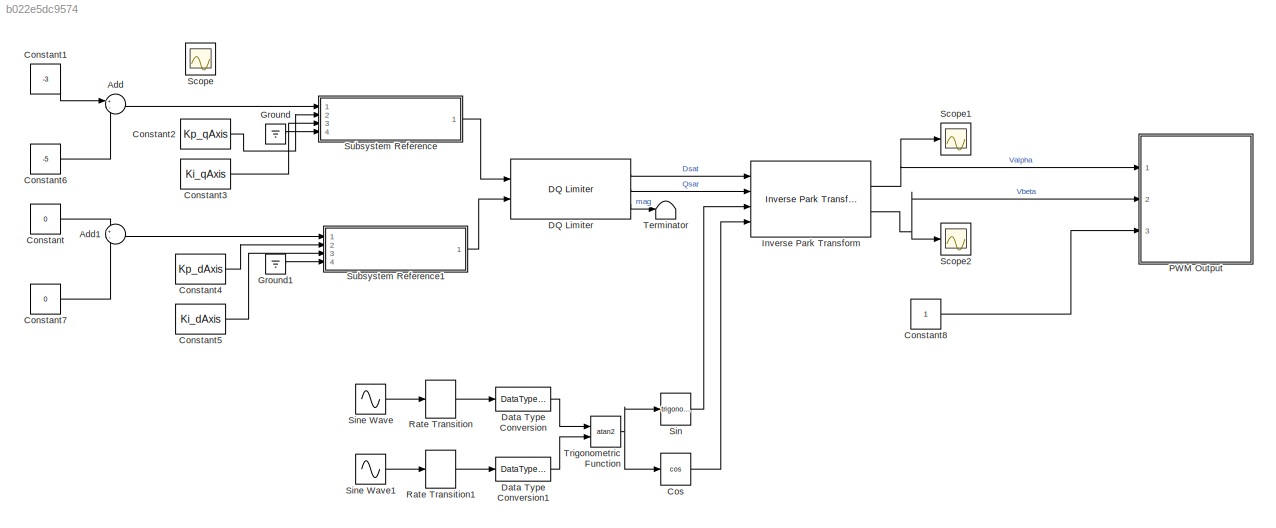
MODEL slx_b022e5dc9574
KIND model
CONFIG AbsTol = auto
CONFIG EnableMultiTasking = off
CONFIG FixedStep = 2e-4
CONFIG MaxStep = auto
CONFIG MinStep = auto
CONFIG RelTol = 1e-3
CONFIG SampleTimeConstraint = Unconstrained
CONFIG SolverName = FixedStepDiscrete
CONFIG StartTime = 0.0
CONFIG StopTime = 10.0
BLOCK [Sum] Add
  Inputs = +-
  Ports = [2, 1]
BLOCK [Sum] Add1
  Inputs = +-
  Ports = [2, 1]
BLOCK [Constant] Constant
  OutDataTypeStr = single
  Value = 0
BLOCK [Constant] Constant1
  OutDataTypeStr = single
  Value = -3
BLOCK [Constant] Constant2
  OutDataTypeStr = single
  Value = Kp_qAxis
BLOCK [Constant] Constant3
  OutDataTypeStr = single
  Value = Ki_qAxis
BLOCK [Constant] Constant4
  OutDataTypeStr = single
  Value = Kp_dAxis
BLOCK [Constant] Constant5
  OutDataTypeStr = single
  Value = Ki_dAxis
BLOCK [Constant] Constant6
  OutDataTypeStr = single
  Value = -5
BLOCK [Constant] Constant7
  OutDataTypeStr = single
  Value = 0
BLOCK [Constant] Constant8
BLOCK [Trigonometry] Cos
  Operator = cos
  Ports = [1, 1]
BLOCK [Reference] DQ Limiter  REF=mcbcontrolslib/DQ Limiter
  Ports = [2, 3]
  SourceBlock = mcbcontrolslib/DQ Limiter
  SourceProductBaseCode = MT
  SourceType = DQ Limiter
BLOCK [DataTypeConversion] Data Type Conversion
  OutDataTypeStr = single
  RndMeth = Floor
  SaturateOnIntegerOverflow = off
BLOCK [DataTypeConversion] Data Type Conversion1
  OutDataTypeStr = single
  RndMeth = Floor
  SaturateOnIntegerOverflow = off
BLOCK [Ground] Ground
BLOCK [Ground] Ground1
BLOCK [Reference] Inverse Park Transform  REF=mcbcontrolslib/Inverse Park Transform
  Ports = [4, 2]
  SourceBlock = mcbcontrolslib/Inverse Park Transform
  SourceProductBaseCode = MT
  SourceType = Inverse Park Transform
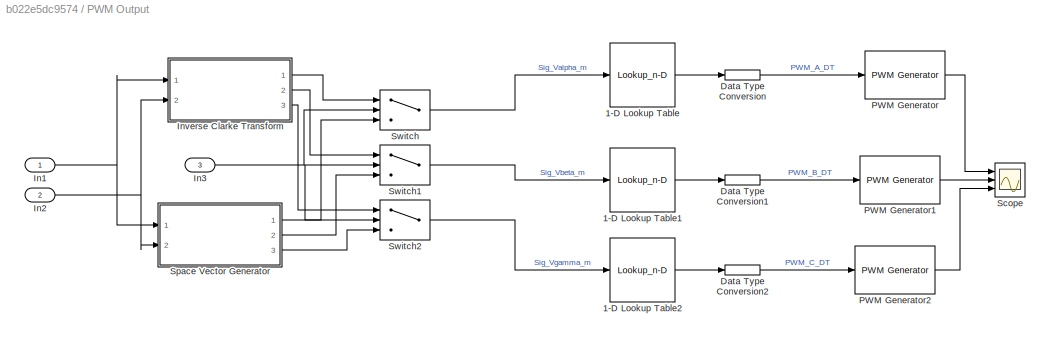
BLOCK [SubSystem] PWM Output
  Ports = [3]
  RequestExecContextInheritance = off
BLOCK [Lookup_n-D] PWM Output/1-D Lookup Table
  BreakpointsForDimension1 = BrkPoints
  ExtrapMethod = Clip
  InputPortMap = u0
  InternalRulePriority = Speed
  NumberOfTableDimensions = 1
  OutDataTypeStr = uint16
  Ports = [1, 1]
  RndMeth = Simplest
  SaturateOnIntegerOverflow = on
  Table = pwmTableData
BLOCK [Lookup_n-D] PWM Output/1-D Lookup Table1
  BreakpointsForDimension1 = BrkPoints
  ExtrapMethod = Clip
  InputPortMap = u0
  InternalRulePriority = Speed
  NumberOfTableDimensions = 1
  OutDataTypeStr = uint16
  Ports = [1, 1]
  RndMeth = Simplest
  SaturateOnIntegerOverflow = on
  Table = pwmTableData
BLOCK [Lookup_n-D] PWM Output/1-D Lookup Table2
  BreakpointsForDimension1 = BrkPoints
  ExtrapMethod = Clip
  InputPortMap = u0
  InternalRulePriority = Speed
  NumberOfTableDimensions = 1
  OutDataTypeStr = uint16
  Ports = [1, 1]
  RndMeth = Simplest
  SaturateOnIntegerOverflow = on
  Table = pwmTableData
BLOCK [DataTypeConversion] PWM Output/Data Type Conversion
  RndMeth = Floor
  SaturateOnIntegerOverflow = off
BLOCK [DataTypeConversion] PWM Output/Data Type Conversion1
  RndMeth = Floor
  SaturateOnIntegerOverflow = off
BLOCK [DataTypeConversion] PWM Output/Data Type Conversion2
  RndMeth = Floor
  SaturateOnIntegerOverflow = off
BLOCK [Inport] PWM Output/In1
BLOCK [Inport] PWM Output/In2
  Port = 2
BLOCK [Inport] PWM Output/In3
  Port = 3
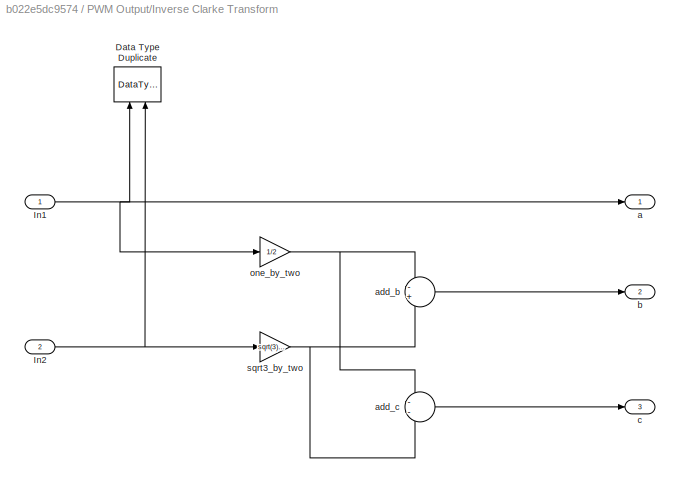
BLOCK [SubSystem] PWM Output/Inverse Clarke Transform
  Ports = [2, 3]
  RequestExecContextInheritance = off
  TreatAsAtomicUnit = on
BLOCK [DataTypeDuplicate] PWM Output/Inverse Clarke Transform/Data Type Duplicate
  NameLocation = right
  Ports = [2]
BLOCK [Inport] PWM Output/Inverse Clarke Transform/In1
BLOCK [Inport] PWM Output/Inverse Clarke Transform/In2
  Port = 2
BLOCK [Outport] PWM Output/Inverse Clarke Transform/a
  VectorParamsAs1DForOutWhenUnconnected = off
BLOCK [Sum] PWM Output/Inverse Clarke Transform/add_b
  AccumDataTypeStr = Inherit: Same as first input
  Inputs = -+
  OutDataTypeStr = Inherit: Same as first input
  Ports = [2, 1]
  RndMeth = Simplest
BLOCK [Sum] PWM Output/Inverse Clarke Transform/add_c
  AccumDataTypeStr = Inherit: Same as first input
  Inputs = --
  OutDataTypeStr = Inherit: Same as first input
  Ports = [2, 1]
  RndMeth = Simplest
BLOCK [Outport] PWM Output/Inverse Clarke Transform/b
  Port = 2
  VectorParamsAs1DForOutWhenUnconnected = off
BLOCK [Outport] PWM Output/Inverse Clarke Transform/c
  Port = 3
  VectorParamsAs1DForOutWhenUnconnected = off
BLOCK [Gain] PWM Output/Inverse Clarke Transform/one_by_two
  Gain = 1/2
  NameLocation = top
  OutDataTypeStr = Inherit: Same as input
  RndMeth = Simplest
BLOCK [Gain] PWM Output/Inverse Clarke Transform/sqrt3_by_two
  Gain = sqrt(3)/2
  OutDataTypeStr = Inherit: Same as input
  RndMeth = Simplest
BLOCK [Reference] PWM Output/PWM Generator  REF=eePwmGenerator/PWM Generator
  Commented = on
  Ports = [1, 1]
  SourceBlock = eePwmGenerator/PWM Generator
  SourceProductBaseCode = PS
  SourceType = PWM Generator
BLOCK [Reference] PWM Output/PWM Generator1  REF=eePwmGenerator/PWM Generator
  Commented = on
  Ports = [1, 1]
  SourceBlock = eePwmGenerator/PWM Generator
  SourceProductBaseCode = PS
  SourceType = PWM Generator
BLOCK [Reference] PWM Output/PWM Generator2  REF=eePwmGenerator/PWM Generator
  Commented = on
  Ports = [1, 1]
  SourceBlock = eePwmGenerator/PWM Generator
  SourceProductBaseCode = PS
  SourceType = PWM Generator
BLOCK [Scope] PWM Output/Scope
  Commented = on
  Floating = off
  NumInputPorts = 3
  Ports = [3]
  ScopeSpecificationString = Simulink.scopes.TimeScopeBlockCfg('CurrentConfiguration', extmgr.ConfigurationSet(extmgr.Configuration('Core','General UI',true),extmgr.Configuration('Core','Source UI',true),extmgr.Configuration('Sources','WiredSimulink',true,'DataLoggingVariableName','ScopeData1'),extmgr.Configuration('Visuals','Time Domain',true,'SerializedDisplays',{struct('MinYLimReal','-0.125','MaxYLimReal','1.125','YLabelRe...<+1494ch>
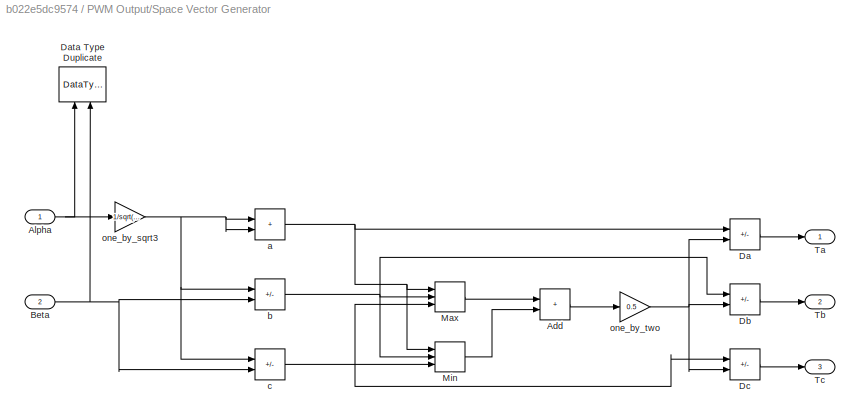
BLOCK [SubSystem] PWM Output/Space Vector Generator
  Ports = [2, 3]
  RequestExecContextInheritance = off
  TreatAsAtomicUnit = on
BLOCK [Sum] PWM Output/Space Vector Generator/Add
  AccumDataTypeStr = Inherit: Same as first input
  IconShape = rectangular
  OutDataTypeStr = Inherit: Same as first input
  Ports = [2, 1]
  RndMeth = Simplest
BLOCK [Inport] PWM Output/Space Vector Generator/Alpha
BLOCK [Inport] PWM Output/Space Vector Generator/Beta
  Port = 2
BLOCK [Sum] PWM Output/Space Vector Generator/Da
  AccumDataTypeStr = Inherit: Same as first input
  IconShape = rectangular
  Inputs = +-
  OutDataTypeStr = Inherit: Same as first input
  Ports = [2, 1]
  RndMeth = Simplest
BLOCK [DataTypeDuplicate] PWM Output/Space Vector Generator/Data Type Duplicate
  NameLocation = right
  Ports = [2]
BLOCK [Sum] PWM Output/Space Vector Generator/Db
  AccumDataTypeStr = Inherit: Same as first input
  IconShape = rectangular
  Inputs = +-
  OutDataTypeStr = Inherit: Same as first input
  Ports = [2, 1]
  RndMeth = Simplest
BLOCK [Sum] PWM Output/Space Vector Generator/Dc
  AccumDataTypeStr = Inherit: Same as first input
  IconShape = rectangular
  Inputs = +-
  OutDataTypeStr = Inherit: Same as first input
  Ports = [2, 1]
  RndMeth = Simplest
BLOCK [MinMax] PWM Output/Space Vector Generator/Max
  Function = max
  Inputs = 3
  Ports = [3, 1]
  RndMeth = Simplest
BLOCK [MinMax] PWM Output/Space Vector Generator/Min
  Inputs = 3
  Ports = [3, 1]
  RndMeth = Simplest
BLOCK [Outport] PWM Output/Space Vector Generator/Ta
  VectorParamsAs1DForOutWhenUnconnected = off
BLOCK [Outport] PWM Output/Space Vector Generator/Tb
  Port = 2
  VectorParamsAs1DForOutWhenUnconnected = off
BLOCK [Outport] PWM Output/Space Vector Generator/Tc
  Port = 3
  VectorParamsAs1DForOutWhenUnconnected = off
BLOCK [Sum] PWM Output/Space Vector Generator/a
  AccumDataTypeStr = Inherit: Same as first input
  IconShape = rectangular
  NameLocation = top
  OutDataTypeStr = Inherit: Same as first input
  Ports = [2, 1]
  RndMeth = Simplest
BLOCK [Sum] PWM Output/Space Vector Generator/b
  AccumDataTypeStr = Inherit: Same as first input
  IconShape = rectangular
  Inputs = -+
  NameLocation = top
  OutDataTypeStr = Inherit: Same as first input
  Ports = [2, 1]
  RndMeth = Simplest
BLOCK [Sum] PWM Output/Space Vector Generator/c
  AccumDataTypeStr = Inherit: Same as first input
  IconShape = rectangular
  Inputs = --
  NameLocation = top
  OutDataTypeStr = Inherit: Same as first input
  Ports = [2, 1]
  RndMeth = Simplest
BLOCK [Gain] PWM Output/Space Vector Generator/one_by_sqrt3
  Gain = 1/sqrt(3)
  NameLocation = top
  OutDataTypeStr = Inherit: Same as input
  ParamDataTypeStr = Inherit: Same as input
  RndMeth = Simplest
BLOCK [Gain] PWM Output/Space Vector Generator/one_by_two
  Gain = 0.5
  NameLocation = top
  OutDataTypeStr = Inherit: Same as input
  ParamDataTypeStr = Inherit: Same as input
  RndMeth = Simplest
BLOCK [Switch] PWM Output/Switch
  Criteria = u2 > Threshold
  InputSameDT = off
  SaturateOnIntegerOverflow = off
BLOCK [Switch] PWM Output/Switch1
  Criteria = u2 > Threshold
  InputSameDT = off
  SaturateOnIntegerOverflow = off
BLOCK [Switch] PWM Output/Switch2
  Criteria = u2 > Threshold
  InputSameDT = off
  SaturateOnIntegerOverflow = off
BLOCK [RateTransition] Rate Transition
BLOCK [RateTransition] Rate Transition1
BLOCK [Scope] Scope
  Floating = off
  IOType = viewer
  NumInputPorts = 1
  Ports = []
  ScopeSpecificationString = Simulink.scopes.TimeScopeBlockCfg('CurrentConfiguration', extmgr.ConfigurationSet(extmgr.Configuration('Core','General UI',true),extmgr.Configuration('Core','Source UI',true),extmgr.Configuration('Sources','WiredSimulink',true),extmgr.Configuration('Visuals','Time Domain',true,'SerializedDisplays',{struct('MinYLimReal','-0.75','MaxYLimReal','6.75','YLabelReal','','MinYLimMag','0.00000','MaxYLimMag...<+3465ch>
BLOCK [Scope] Scope1
  Floating = off
  NumInputPorts = 1
  Ports = [1]
  ScopeSpecificationString = Simulink.scopes.TimeScopeBlockCfg('CurrentConfiguration', extmgr.ConfigurationSet(extmgr.Configuration('Core','General UI',true),extmgr.Configuration('Core','Source UI',true),extmgr.Configuration('Sources','WiredSimulink',true,'DataLoggingVariableName','ScopeData1'),extmgr.Configuration('Visuals','Time Domain',true,'SerializedDisplays',{struct('MinYLimReal','-7.5','MaxYLimReal','7.5','YLabelReal',...<+1371ch>
BLOCK [Scope] Scope2
  Floating = off
  NumInputPorts = 1
  Ports = [1]
  ScopeSpecificationString = Simulink.scopes.TimeScopeBlockCfg('CurrentConfiguration', extmgr.ConfigurationSet(extmgr.Configuration('Core','General UI',true),extmgr.Configuration('Core','Source UI',true),extmgr.Configuration('Sources','WiredSimulink',true,'DataLoggingVariableName','ScopeData2'),extmgr.Configuration('Visuals','Time Domain',true),extmgr.Configuration('Tools','Plot Navigation',true),extmgr.Configuration('Tools',...<+40ch>
BLOCK [Trigonometry] Sin
  Ports = [1, 1]
BLOCK [Sin] Sine Wave
  Amplitude = 3
  Frequency = 60
  Ports = [0, 1]
  SampleTime = 0
BLOCK [Sin] Sine Wave1
  Amplitude = 3
  Frequency = 60
  Phase = pi/2
  Ports = [0, 1]
  SampleTime = 0
BLOCK [SubSystem] Subsystem Reference
  Ports = [4, 1]
  ReferencedSubsystem = PID_custom
  RequestExecContextInheritance = off
BLOCK [SubSystem] Subsystem Reference1
  Ports = [4, 1]
  ReferencedSubsystem = PID_custom
  RequestExecContextInheritance = off
BLOCK [Terminator] Terminator
BLOCK [Trigonometry] Trigonometric Function
  Operator = atan2
  Ports = [2, 1]
LINE Add1:1 -> Subsystem Reference1:1
LINE Add:1 -> Subsystem Reference:1
LINE Constant1:1 -> Add:1
LINE Constant2:1 -> Subsystem Reference:2
LINE Constant3:1 -> Subsystem Reference:3
LINE Constant4:1 -> Subsystem Reference1:2
LINE Constant5:1 -> Subsystem Reference1:3
LINE Constant6:1 -> Add:2
LINE Constant7:1 -> Add1:2
LINE Constant8:1 -> PWM Output:3
LINE Constant:1 -> Add1:1
LINE Cos:1 -> Inverse Park Transform:4
LINE DQ Limiter:1 -> Inverse Park Transform:1
LINE DQ Limiter:2 -> Inverse Park Transform:2
LINE DQ Limiter:3 -> Terminator:1
LINE Data Type Conversion1:1 -> Trigonometric Function:2
LINE Data Type Conversion:1 -> Trigonometric Function:1
LINE Ground1:1 -> Subsystem Reference1:4
LINE Ground:1 -> Subsystem Reference:4
NET Inverse Park Transform:1 -> PWM Output:1, Scope1:1
NET Inverse Park Transform:2 -> PWM Output:2, Scope2:1
LINE PWM Output/1-D Lookup Table1:1 -> PWM Output/Data Type Conversion1:1
LINE PWM Output/1-D Lookup Table2:1 -> PWM Output/Data Type Conversion2:1
LINE PWM Output/1-D Lookup Table:1 -> PWM Output/Data Type Conversion:1
LINE PWM Output/Data Type Conversion1:1 -> PWM Output/PWM Generator1:1
LINE PWM Output/Data Type Conversion2:1 -> PWM Output/PWM Generator2:1
LINE PWM Output/Data Type Conversion:1 -> PWM Output/PWM Generator:1
NET PWM Output/In1:1 -> PWM Output/Inverse Clarke Transform:1, PWM Output/Space Vector Generator:1
NET PWM Output/In2:1 -> PWM Output/Inverse Clarke Transform:2, PWM Output/Space Vector Generator:2
NET PWM Output/In3:1 -> PWM Output/Switch1:2, PWM Output/Switch2:2, PWM Output/Switch:2
LINE PWM Output/Inverse Clarke Transform:1 -> PWM Output/Switch:1
LINE PWM Output/Inverse Clarke Transform:2 -> PWM Output/Switch1:1
LINE PWM Output/Inverse Clarke Transform:3 -> PWM Output/Switch2:1
LINE PWM Output/PWM Generator1:1 -> PWM Output/Scope:2
LINE PWM Output/PWM Generator2:1 -> PWM Output/Scope:3
LINE PWM Output/PWM Generator:1 -> PWM Output/Scope:1
LINE PWM Output/Space Vector Generator/Add:1 -> PWM Output/Space Vector Generator/one_by_two:1
NET PWM Output/Space Vector Generator/Alpha:1 -> PWM Output/Space Vector Generator/Data Type Duplicate:1, PWM Output/Space Vector Generator/one_by_sqrt3:1
NET PWM Output/Space Vector Generator/Beta:1 -> PWM Output/Space Vector Generator/Data Type Duplicate:2, PWM Output/Space Vector Generator/b:2, PWM Output/Space Vector Generator/c:2
LINE PWM Output/Space Vector Generator/Da:1 -> PWM Output/Space Vector Generator/Ta:1
LINE PWM Output/Space Vector Generator/Db:1 -> PWM Output/Space Vector Generator/Tb:1
LINE PWM Output/Space Vector Generator/Dc:1 -> PWM Output/Space Vector Generator/Tc:1
LINE PWM Output/Space Vector Generator/Max:1 -> PWM Output/Space Vector Generator/Add:1
LINE PWM Output/Space Vector Generator/Min:1 -> PWM Output/Space Vector Generator/Add:2
NET PWM Output/Space Vector Generator/a:1 -> PWM Output/Space Vector Generator/Da:1, PWM Output/Space Vector Generator/Max:1, PWM Output/Space Vector Generator/Min:1
NET PWM Output/Space Vector Generator/b:1 -> PWM Output/Space Vector Generator/Db:1, PWM Output/Space Vector Generator/Max:2, PWM Output/Space Vector Generator/Min:2
NET PWM Output/Space Vector Generator/c:1 -> PWM Output/Space Vector Generator/Dc:1, PWM Output/Space Vector Generator/Max:3, PWM Output/Space Vector Generator/Min:3
NET PWM Output/Space Vector Generator/one_by_sqrt3:1 -> PWM Output/Space Vector Generator/a:1, PWM Output/Space Vector Generator/a:2, PWM Output/Space Vector Generator/b:1, PWM Output/Space Vector Generator/c:1
NET PWM Output/Space Vector Generator/one_by_two:1 -> PWM Output/Space Vector Generator/Da:2, PWM Output/Space Vector Generator/Db:2, PWM Output/Space Vector Generator/Dc:2
LINE PWM Output/Space Vector Generator:1 -> PWM Output/Switch:3
LINE PWM Output/Space Vector Generator:2 -> PWM Output/Switch1:3
LINE PWM Output/Space Vector Generator:3 -> PWM Output/Switch2:3
LINE PWM Output/Switch1:1 -> PWM Output/1-D Lookup Table1:1
LINE PWM Output/Switch2:1 -> PWM Output/1-D Lookup Table2:1
LINE PWM Output/Switch:1 -> PWM Output/1-D Lookup Table:1
LINE Rate Transition1:1 -> Data Type Conversion1:1
LINE Rate Transition:1 -> Data Type Conversion:1
LINE Sin:1 -> Inverse Park Transform:3
LINE Sine Wave1:1 -> Rate Transition1:1
LINE Sine Wave:1 -> Rate Transition:1
LINE Subsystem Reference1:1 -> DQ Limiter:2
LINE Subsystem Reference:1 -> DQ Limiter:1
NET Trigonometric Function:1 -> Cos:1, Sin:1
note: NET lines group one-source signal fan-out (src -> all destinations, sorted); 1:1 wires keep LINE
